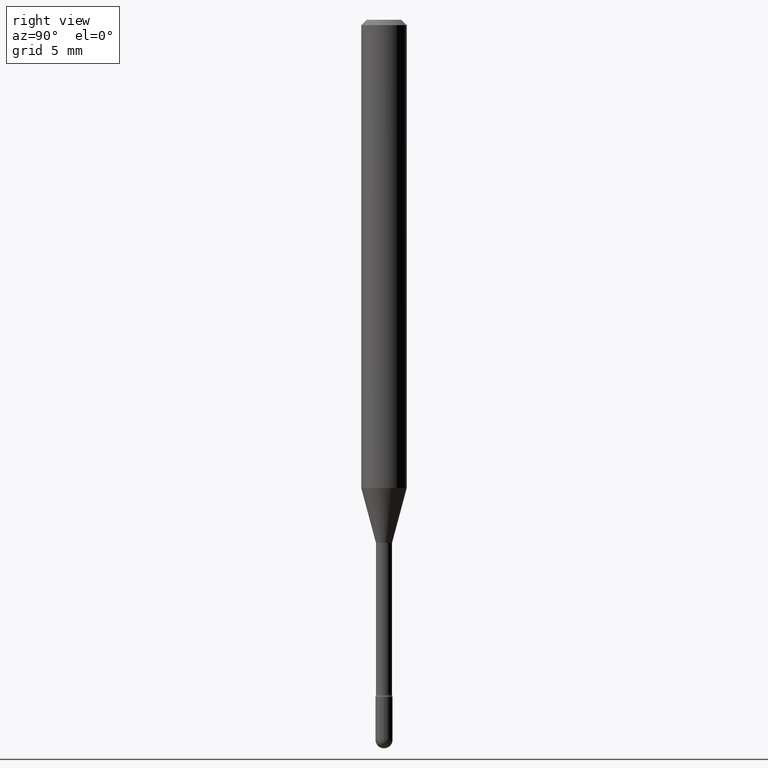
[diagram: clean part render]
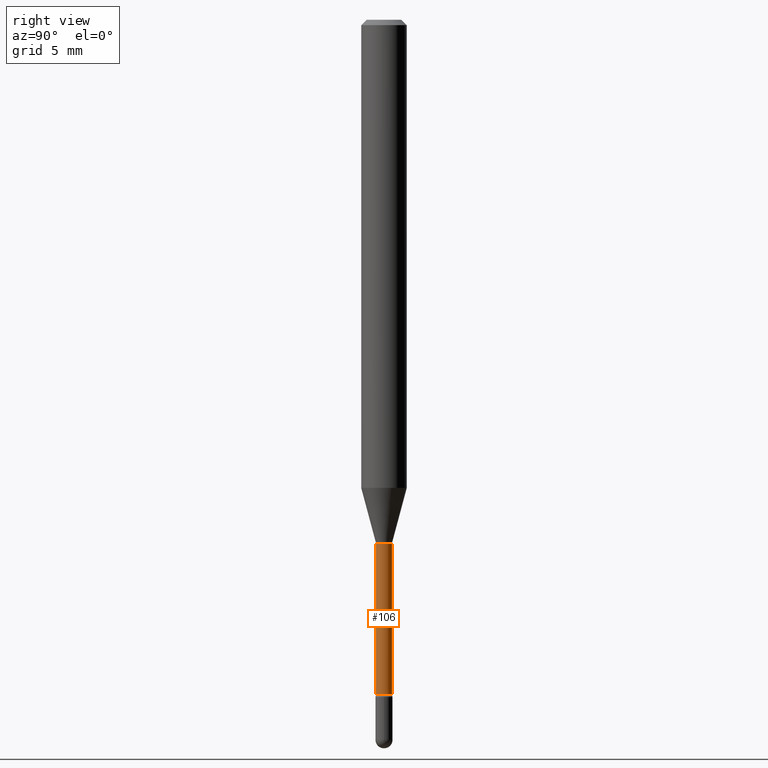
[diagram: same view with one face highlighted and labeled with its STEP entity id]
A machine part, right view. The second image highlights one B-rep face of the part: STEP entity #106.
In plain terms, the highlighted cylindrical surface (edge-blend (fillet) strip) has radius 0.5613 mm, axis along (-0, 0, 1).
Its self-contained STEP definition (entity closure, byte-faithful):
#1 = EDGE_LOOP ( 'NONE', ( #60, #512, #511, #558 ) ) ;
#11 = EDGE_CURVE ( 'NONE', #205, #374, #116, .T. ) ;
#46 = AXIS2_PLACEMENT_3D ( 'NONE', #62, #421, #549 ) ;
#60 = ORIENTED_EDGE ( 'NONE', *, *, #554, .T. ) ;
#62 = CARTESIAN_POINT ( 'NONE',  ( 4.530625099949576267E-29, -6.468609622310960210E-15, -1.852672283192177582 ) ) ;
#93 = DIRECTION ( 'NONE',  ( -2.445454137276373671E-29, 3.491502345555396345E-15, 1.000000000000000000 ) ) ;
#97 = CARTESIAN_POINT ( 'NONE',  ( -1.543234751768666840E-16, -0.02210000000000003281, 5.552356007280204310E-16 ) ) ;
#106 = ADVANCED_FACE ( 'NONE', ( #130 ), #366, .T. ) ;
#111 = VERTEX_POINT ( 'NONE', #531 ) ;
#116 = CIRCLE ( 'NONE', #553, 0.02210000000000000159 ) ;
#130 = FACE_OUTER_BOUND ( 'NONE', #1, .T. ) ;
#136 = CARTESIAN_POINT ( 'NONE',  ( 1.570299446030275858E-16, 0.02209999999999498130, -1.437974787463811133 ) ) ;
#139 = CARTESIAN_POINT ( 'NONE',  ( -1.543234751768215957E-16, -0.02210000000000652762, -1.852672283192177582 ) ) ;
#170 = CARTESIAN_POINT ( 'NONE',  ( 3.516501393302491110E-29, -5.020692343279419732E-15, -1.437974787463811133 ) ) ;
#175 = DIRECTION ( 'NONE',  ( -6.982962677686265133E-15, -1.000000000000000000, 3.491502345555394767E-15 ) ) ;
#205 = VERTEX_POINT ( 'NONE', #522 ) ;
#216 = LINE ( 'NONE', #344, #412 ) ;
#233 = CIRCLE ( 'NONE', #46, 0.02210000000000006057 ) ;
#268 = DIRECTION ( 'NONE',  ( -2.445454137276373671E-29, 3.491502345555396345E-15, 1.000000000000000000 ) ) ;
#287 = EDGE_CURVE ( 'NONE', #111, #374, #216, .T. ) ;
#311 = VECTOR ( 'NONE', #268, 39.37007874015748143 ) ;
#344 = CARTESIAN_POINT ( 'NONE',  ( 1.570299446029823249E-16, 0.02210000000000003281, 4.009111970544717448E-16 ) ) ;
#366 = CYLINDRICAL_SURFACE ( 'NONE', #514, 0.02210000000000003281 ) ;
#374 = VERTEX_POINT ( 'NONE', #136 ) ;
#391 = DIRECTION ( 'NONE',  ( -2.445454137276373671E-29, 3.491502345555396345E-15, 1.000000000000000000 ) ) ;
#400 = LINE ( 'NONE', #97, #311 ) ;
#412 = VECTOR ( 'NONE', #391, 39.37007874015748143 ) ;
#419 = VERTEX_POINT ( 'NONE', #139 ) ;
#421 = DIRECTION ( 'NONE',  ( -2.445454137276373671E-29, 3.491502345555396345E-15, 1.000000000000000000 ) ) ;
#459 = EDGE_CURVE ( 'NONE', #419, #205, #400, .T. ) ;
#511 = ORIENTED_EDGE ( 'NONE', *, *, #11, .F. ) ;
#512 = ORIENTED_EDGE ( 'NONE', *, *, #287, .T. ) ;
#514 = AXIS2_PLACEMENT_3D ( 'NONE', #536, #93, #175 ) ;
#516 = DIRECTION ( 'NONE',  ( -2.445454137276373671E-29, 3.491502345555396345E-15, 1.000000000000000000 ) ) ;
#522 = CARTESIAN_POINT ( 'NONE',  ( -1.543234751768313332E-16, -0.02210000000000502188, -1.437974787463811133 ) ) ;
#523 = DIRECTION ( 'NONE',  ( -6.982962677686265922E-15, -1.000000000000000000, 0.000000000000000000 ) ) ;
#531 = CARTESIAN_POINT ( 'NONE',  ( 1.620037437533484049E-16, 0.02209999999999359352, -1.852672283192177582 ) ) ;
#536 = CARTESIAN_POINT ( 'NONE',  ( -1.169113584055446105E-44, 1.669184350826100908E-30, 4.780733988912460139E-16 ) ) ;
#549 = DIRECTION ( 'NONE',  ( -6.982962677686265922E-15, -1.000000000000000000, 0.000000000000000000 ) ) ;
#553 = AXIS2_PLACEMENT_3D ( 'NONE', #170, #516, #523 ) ;
#554 = EDGE_CURVE ( 'NONE', #419, #111, #233, .T. ) ;
#558 = ORIENTED_EDGE ( 'NONE', *, *, #459, .F. ) ;